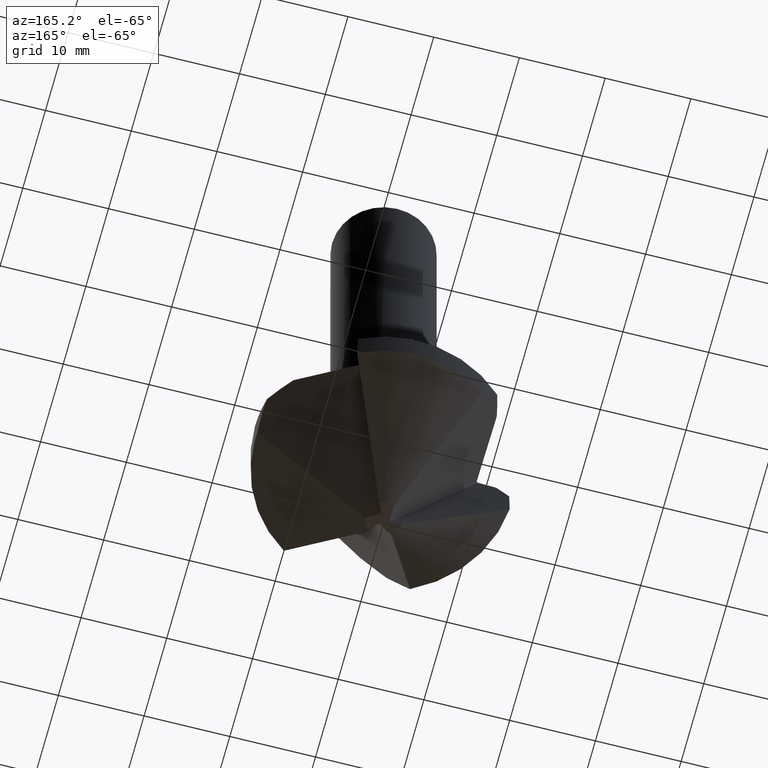
[diagram: clean part render]
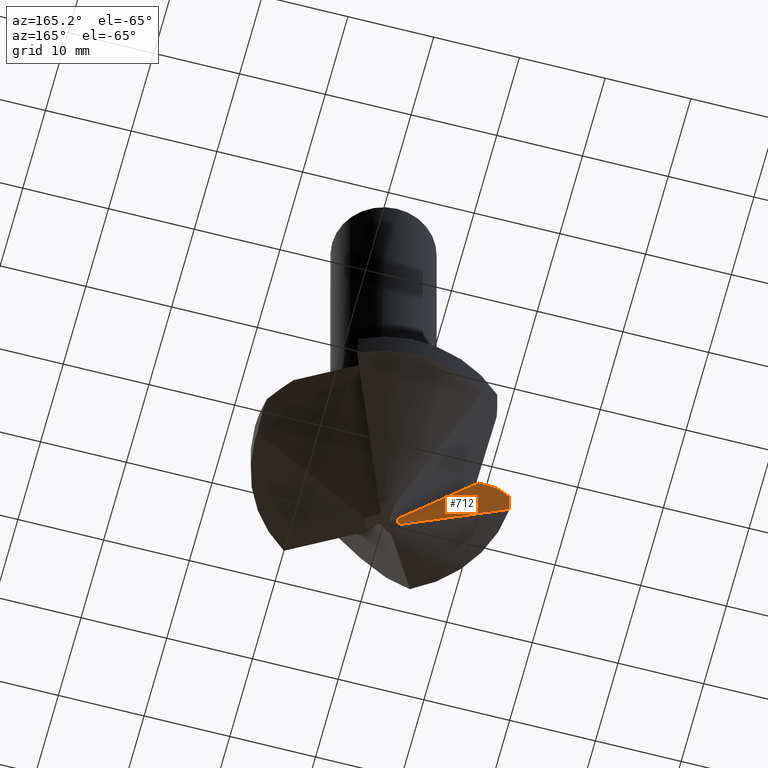
[diagram: same view with one face highlighted and labeled with its STEP entity id]
A machine part, auxiliary view. The second image highlights one B-rep face of the part: STEP entity #712.
In plain terms, the highlighted planar face has unit normal (0.0349, -0.9988, -0.0349).
Its self-contained STEP definition (entity closure, byte-faithful):
#414=EDGE_CURVE('',#534,#684,#1172,.T.);
#422=EDGE_CURVE('',#714,#762,#1181,.T.);
#446=EDGE_CURVE('',#836,#714,#1208,.T.);
#500=VERTEX_POINT('',#1268);
#532=EDGE_CURVE('',#948,#748,#1302,.T.);
#534=VERTEX_POINT('',#1304);
#562=EDGE_CURVE('',#762,#500,#1334,.T.);
#684=VERTEX_POINT('',#1467);
#712=ADVANCED_FACE('',(#1498),#1499,.F.);
#714=VERTEX_POINT('',#1501);
#748=VERTEX_POINT('',#1537);
#762=VERTEX_POINT('',#1551);
#836=VERTEX_POINT('',#1632);
#848=VERTEX_POINT('',#1644);
#948=VERTEX_POINT('',#1758);
#1002=EDGE_CURVE('',#500,#948,#1817,.T.);
#1028=EDGE_CURVE('',#684,#848,#1844,.T.);
#1072=EDGE_CURVE('',#848,#836,#1892,.T.);
#1074=EDGE_CURVE('',#748,#534,#1894,.T.);
#1172=LINE('',#1995,#1996);
#1181=(B_SPLINE_CURVE(2,(#2008,#2009,#2010),.UNSPECIFIED.,.F.,.F.)B_SPLINE_CURVE_WITH_KNOTS((3,3),(0.0,18.2441263801064),.UNSPECIFIED.)RATIONAL_B_SPLINE_CURVE((1.0,1.5229593067352,1.0))BOUNDED_CURVE()REPRESENTATION_ITEM('')GEOMETRIC_REPRESENTATION_ITEM()CURVE());
#1208=ELLIPSE('',#2052,429.805625217573,15.0);
#1268=CARTESIAN_POINT('',(-2.09371156634588,-0.0734634395430449,-71.0));
#1302=ELLIPSE('',#2228,48.1382300243682,1.68);
#1304=CARTESIAN_POINT('',(-11.3525974298583,-1.02784437630678,-52.94));
#1334=LINE('',#2291,#2292);
#1467=CARTESIAN_POINT('',(-13.4550073089325,-1.10126214707111,-52.94));
#1498=FACE_OUTER_BOUND('',#2687,.T.);
#1499=PLANE('',#2688);
#1501=CARTESIAN_POINT('',(-14.9683565257174,-0.97380846115279,-58.1));
#1537=CARTESIAN_POINT('',(-1.67683163192057,-0.103129424465489,-69.734368865691));
#1551=CARTESIAN_POINT('',(-2.09870852055023,-0.0736379370289758,-71.0));
#1632=CARTESIAN_POINT('',(-14.9595102077595,-1.10138746312915,-54.44));
#1644=CARTESIAN_POINT('',(-13.46504064562,-1.10126309835633,-52.95));
#1758=CARTESIAN_POINT('',(-1.67895206996109,-0.0593291393277558,-70.99));
#1817=(B_SPLINE_CURVE(2,(#3414,#3415,#3416,#3417,#3418,#3419,#3420,#3421,#3422,#3423,#3424,#3425,#3426,#3427,#3428,#3429,#3430),.UNSPECIFIED.,.F.,.F.)B_SPLINE_CURVE_WITH_KNOTS((3,1,1,1,1,1,1,1,1,1,1,1,1,1,1,3),(0.0,0.00228197784831748,0.00589359738953574,0.0164807296602363,0.0481206427863343,0.142983301167386,0.426788354689196,1.25027409244725,2.99766924871248,4.62470278557415,5.44463099736642,5.76156322016653,5.87271608035833,5.91041204459301,5.92305210027942,5.92727446753042),.UNSPECIFIED.)RATIONAL_B_SPLINE_CURVE((1.0,1.53967988158959,2.93242208681419,6.28370010920059,16.2147155231255,45.6463670515748,130.879380405566,355.038311446972,706.543013150518,697.378958290499,373.029098949808,147.951337727499,52.3715463045983,17.8173605773747,5.98079840841892,1.99857527527195,1.0))BOUNDED_CURVE()REPRESENTATION_ITEM('')GEOMETRIC_REPRESENTATION_ITEM()CURVE());
#1844=LINE('',#3483,#3484);
#1892=(B_SPLINE_CURVE(2,(#3594,#3595,#3596),.UNSPECIFIED.,.F.,.F.)B_SPLINE_CURVE_WITH_KNOTS((3,3),(0.0,2.11034104235538),.UNSPECIFIED.)RATIONAL_B_SPLINE_CURVE((1.0,1.00136930049867,1.0))BOUNDED_CURVE()REPRESENTATION_ITEM('')GEOMETRIC_REPRESENTATION_ITEM()CURVE());
#1894=LINE('',#3605,#3606);
#1995=CARTESIAN_POINT('',(-4.12156817169083,-0.775331270394233,-52.94));
#1996=VECTOR('',#3823,1.0);
#2008=CARTESIAN_POINT('',(-14.9683565257174,-0.973808461152789,-58.1));
#2009=CARTESIAN_POINT('',(-3.68064098195138,-0.184257751965427,-69.4151614520734));
#2010=CARTESIAN_POINT('',(-2.09870852055023,-0.0736379370289759,-71.0));
#2052=AXIS2_PLACEMENT_3D('',#3884,#3885,#3886);
#2228=AXIS2_PLACEMENT_3D('',#3988,#3989,#3990);
#2291=CARTESIAN_POINT('',(-1.40067306924966,-0.0492620019370413,-71.0));
#2292=VECTOR('',#4015,1.0);
#2687=EDGE_LOOP('',(#4206,#4207,#4208,#4209,#4210,#4211,#4212,#4213,#4214));
#2688=AXIS2_PLACEMENT_3D('',#4215,#4216,#4217);
#3414=CARTESIAN_POINT('',(-2.96098584131128,-0.103018675758396,-71.0209102991126));
#3415=CARTESIAN_POINT('',(-1.92235158760458,-0.0676237822213852,-70.9958684457725));
#3416=CARTESIAN_POINT('',(-1.00829931097753,-0.0364744304842712,-70.973830328297));
#3417=CARTESIAN_POINT('',(-0.469376146813849,-0.0181088416780563,-70.9608367370474));
#3418=CARTESIAN_POINT('',(-0.180551534596118,-0.00826618407474824,-70.953873205516));
#3419=CARTESIAN_POINT('',(-0.0627043573433131,-0.00425013771789544,-70.9510322806035));
#3420=CARTESIAN_POINT('',(-0.0203758195843605,-0.00280760814634849,-70.9500130063163));
#3421=CARTESIAN_POINT('',(-0.00590665915294617,-0.00231437648737358,-70.9496683626741));
#3422=CARTESIAN_POINT('',(-0.00111369618504048,-0.00215050058577507,-70.9495682525528));
#3423=CARTESIAN_POINT('',(0.00128788946278078,-0.00206658893795011,-70.9495695812956));
#3424=CARTESIAN_POINT('',(0.00562047235316459,-0.00191217929574632,-70.9496586577326));
#3425=CARTESIAN_POINT('',(0.0178971975975338,-0.00147328584571963,-70.9499500188899));
#3426=CARTESIAN_POINT('',(0.0545088595298974,-0.000163984807369918,-70.9508312959379));
#3427=CARTESIAN_POINT('',(0.16425113004114,0.00376074208322142,-70.9534768861275));
#3428=CARTESIAN_POINT('',(0.493377903119546,0.0155313909587338,-70.9614125584087));
#3429=CARTESIAN_POINT('',(1.48051647927496,0.0508347072945561,-70.9852141824286));
#3430=CARTESIAN_POINT('',(2.96095924817117,0.103780203654206,-71.0209102991126));
#3483=CARTESIAN_POINT('',(-13.4600239772763,-1.10126262271372,-52.945));
#3484=VECTOR('',#4603,1.0);
#3594=CARTESIAN_POINT('',(-13.46504064562,-1.10126309835632,-52.95));
#3595=CARTESIAN_POINT('',(-14.1733281964142,-1.10133019203823,-53.6559359398979));
#3596=CARTESIAN_POINT('',(-14.9595102077595,-1.10138746312915,-54.44));
#3605=CARTESIAN_POINT('',(-0.706922274812828,-0.0104349852677697,-71.4178547881205));
#3606=VECTOR('',#4648,1.0);
#3823=DIRECTION('',(-0.999390827019096,-0.0348994967025007,0.0));
#3884=CARTESIAN_POINT('',(0.0,0.0,-71.0099999999999));
#3885=DIRECTION('',(0.0348782368720624,-0.998782025129912,-0.0348994967025078));
#3886=DIRECTION('',(-0.0012179748700881,0.0348782368720695,-0.999390827019096));
#3988=CARTESIAN_POINT('',(0.0,0.0,-71.0099999999999));
#3989=DIRECTION('',(-0.0348782368720624,0.998782025129912,0.0348994967025078));
#3990=DIRECTION('',(-0.0012179748700881,0.0348782368720695,-0.999390827019096));
#4015=DIRECTION('',(0.999390827019096,0.0348994967025007,0.0));
#4206=ORIENTED_EDGE('',*,*,#532,.F.);
#4207=ORIENTED_EDGE('',*,*,#1002,.F.);
#4208=ORIENTED_EDGE('',*,*,#562,.F.);
#4209=ORIENTED_EDGE('',*,*,#422,.F.);
#4210=ORIENTED_EDGE('',*,*,#446,.F.);
#4211=ORIENTED_EDGE('',*,*,#1072,.F.);
#4212=ORIENTED_EDGE('',*,*,#1028,.F.);
#4213=ORIENTED_EDGE('',*,*,#414,.F.);
#4214=ORIENTED_EDGE('',*,*,#1074,.F.);
#4215=CARTESIAN_POINT('',(-0.706922274812828,-0.0104349852677697,-71.4178547881205));
#4216=DIRECTION('',(0.0348782368720624,-0.998782025129912,-0.0348994967025078));
#4217=DIRECTION('',(0.866106831942723,0.0127847322876223,0.499695413509544));
#4603=DIRECTION('',(-0.708282467514698,-6.7153994988189E-005,-0.705929133625771));
#4648=DIRECTION('',(-0.498640616330876,-0.0476551875216736,0.865497844507679));